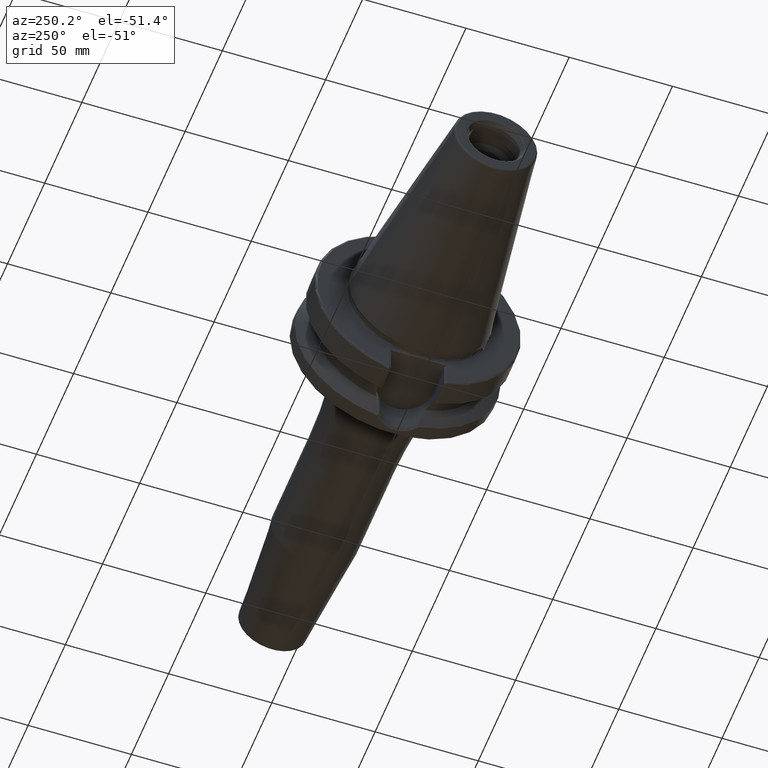
[diagram: clean part render]
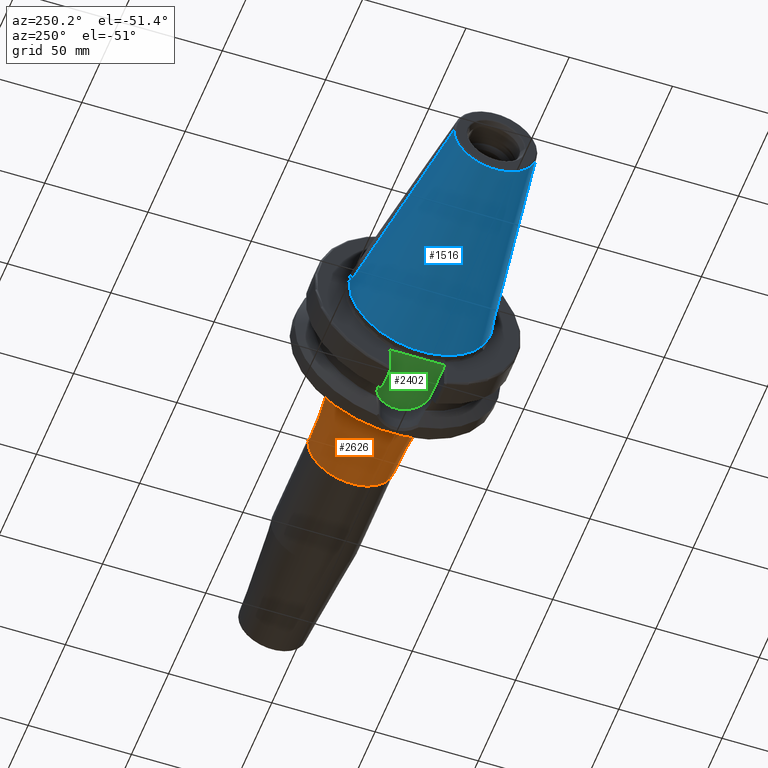
[diagram: same view with three faces highlighted in distinct colors, each labeled with its STEP entity id]
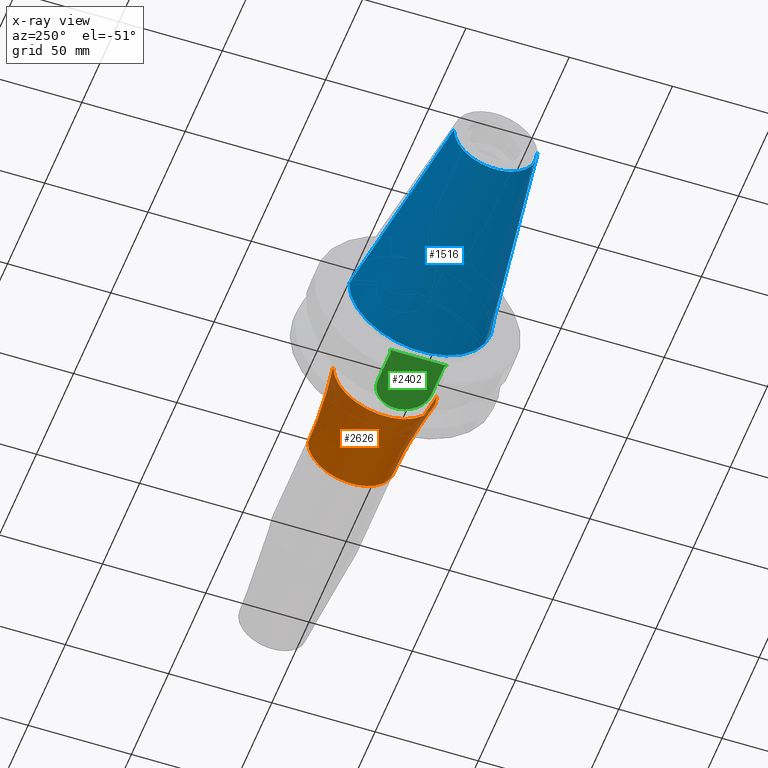
[diagram: x-ray of the same camera — body ghosted, the three highlighted faces saturated]
A machine part, auxiliary view with three faces highlighted in distinct colors.
The next image is the same camera in x-ray (body ghosted, the three faces saturated) — at least one of them is partly hidden behind the body in this view.
Their STEP definitions:

[orange] entity #2626 — the highlighted toroidal blend (fillet) surface has major radius 271 mm and minor (blend) radius 250 mm.
#859=CARTESIAN_POINT('',(4.783193277311E1,0.E0,0.E0));
#860=DIRECTION('',(1.E0,0.E0,0.E0));
#861=DIRECTION('',(0.E0,-1.E0,0.E0));
#862=AXIS2_PLACEMENT_3D('',#859,#860,#861);
#864=CARTESIAN_POINT('',(9.3E1,-2.71E2,-6.637585651379E-14));
#865=DIRECTION('',(0.E0,0.E0,1.E0));
#866=DIRECTION('',(0.E0,1.E0,0.E0));
#867=AXIS2_PLACEMENT_3D('',#864,#865,#866);
#869=CARTESIAN_POINT('',(9.3E1,2.71E2,3.318792825689E-14));
#870=DIRECTION('',(0.E0,0.E0,-1.E0));
#871=DIRECTION('',(0.E0,-1.E0,0.E0));
#872=AXIS2_PLACEMENT_3D('',#869,#870,#871);
#874=CARTESIAN_POINT('',(9.3E1,0.E0,0.E0));
#875=DIRECTION('',(1.E0,0.E0,0.E0));
#876=DIRECTION('',(0.E0,-1.E0,0.E0));
#877=AXIS2_PLACEMENT_3D('',#874,#875,#876);
#1435=CARTESIAN_POINT('',(4.783193277311E1,-2.511416123943E1,0.E0));
#1436=CARTESIAN_POINT('',(4.783193277311E1,2.511416123943E1,0.E0));
#1437=VERTEX_POINT('',#1435);
#1438=VERTEX_POINT('',#1436);
#1439=CARTESIAN_POINT('',(9.3E1,2.1E1,0.E0));
#1440=VERTEX_POINT('',#1439);
#1441=CARTESIAN_POINT('',(9.3E1,-2.1E1,0.E0));
#1442=VERTEX_POINT('',#1441);
#2614=CARTESIAN_POINT('',(9.3E1,0.E0,0.E0));
#2615=DIRECTION('',(1.E0,0.E0,0.E0));
#2616=DIRECTION('',(0.E0,-1.E0,0.E0));
#2617=AXIS2_PLACEMENT_3D('',#2614,#2615,#2616);
#2618=TOROIDAL_SURFACE('',#2617,2.71E2,2.5E2);
#2619=ORIENTED_EDGE('',*,*,#2579,.F.);
#2620=ORIENTED_EDGE('',*,*,#2609,.F.);
#2622=ORIENTED_EDGE('',*,*,#2621,.T.);
#2623=ORIENTED_EDGE('',*,*,#2605,.T.);
#2624=EDGE_LOOP('',(#2619,#2620,#2622,#2623));
#2625=FACE_OUTER_BOUND('',#2624,.F.);
#2626=ADVANCED_FACE('',(#2625),#2618,.F.);
#863=CIRCLE('',#862,2.511416123943E1);
#868=CIRCLE('',#867,2.5E2);
#873=CIRCLE('',#872,2.5E2);
#878=CIRCLE('',#877,2.1E1);
#2579=EDGE_CURVE('',#1437,#1438,#863,.T.);
#2605=EDGE_CURVE('',#1440,#1438,#873,.T.);
#2609=EDGE_CURVE('',#1442,#1437,#868,.T.);
#2621=EDGE_CURVE('',#1442,#1440,#878,.T.);

[blue] entity #1516 — the highlighted conical surface has half-angle 8.298 deg.
#32=CARTESIAN_POINT('',(-1.009443186692E2,0.E0,0.E0));
#33=DIRECTION('',(-1.E0,0.E0,0.E0));
#34=DIRECTION('',(0.E0,1.E0,0.E0));
#35=AXIS2_PLACEMENT_3D('',#32,#33,#34);
#47=DIRECTION('',(-9.895312636440E-1,-1.443186691705E-1,0.E0));
#48=VECTOR('',#47,1.013865167670E2);
#49=CARTESIAN_POINT('',(-6.191906162849E-1,3.483469384295E1,0.E0));
#50=LINE('',#49,#48);
#51=DIRECTION('',(-9.895312636440E-1,1.443186691705E-1,0.E0));
#52=VECTOR('',#51,1.013865167670E2);
#53=CARTESIAN_POINT('',(-6.191906162849E-1,-3.483469384295E1,0.E0));
#54=LINE('',#53,#52);
#55=CARTESIAN_POINT('',(-6.191906162850E-1,0.E0,0.E0));
#56=DIRECTION('',(-1.E0,0.E0,0.E0));
#57=DIRECTION('',(0.E0,1.E0,0.E0));
#58=AXIS2_PLACEMENT_3D('',#55,#56,#57);
#1188=CARTESIAN_POINT('',(-1.009443186692E2,2.020272667130E1,0.E0));
#1190=VERTEX_POINT('',#1188);
#1192=CARTESIAN_POINT('',(-1.009443186692E2,-2.020272667130E1,0.E0));
#1194=VERTEX_POINT('',#1192);
#1407=CARTESIAN_POINT('',(-6.191906162849E-1,3.483469384295E1,0.E0));
#1408=VERTEX_POINT('',#1407);
#1409=CARTESIAN_POINT('',(-6.191906162849E-1,-3.483469384295E1,0.E0));
#1410=VERTEX_POINT('',#1409);
#1504=CARTESIAN_POINT('',(-5.078175464273E1,0.E0,0.E0));
#1505=DIRECTION('',(1.E0,0.E0,0.E0));
#1506=DIRECTION('',(0.E0,-1.E0,0.E0));
#1507=AXIS2_PLACEMENT_3D('',#1504,#1505,#1506);
#1508=CONICAL_SURFACE('',#1507,2.751871025712E1,8.297826828206E0);
#1509=ORIENTED_EDGE('',*,*,#1494,.T.);
#1510=ORIENTED_EDGE('',*,*,#1471,.T.);
#1511=ORIENTED_EDGE('',*,*,#1498,.F.);
#1513=ORIENTED_EDGE('',*,*,#1512,.F.);
#1514=EDGE_LOOP('',(#1509,#1510,#1511,#1513));
#1515=FACE_OUTER_BOUND('',#1514,.F.);
#1516=ADVANCED_FACE('',(#1515),#1508,.T.);
#36=CIRCLE('',#35,2.020272667130E1);
#59=CIRCLE('',#58,3.483469384295E1);
#1471=EDGE_CURVE('',#1190,#1194,#36,.T.);
#1494=EDGE_CURVE('',#1408,#1190,#50,.T.);
#1498=EDGE_CURVE('',#1410,#1194,#54,.T.);
#1512=EDGE_CURVE('',#1408,#1410,#59,.T.);

[green] entity #2402 — the highlighted planar face has unit normal (0, 0, 1).
#116=CARTESIAN_POINT('',(3.E0,5.151759408202E0,-3.52E1));
#117=CARTESIAN_POINT('',(3.E0,4.661054534870E0,-3.52E1));
#118=CARTESIAN_POINT('',(2.985185415827E0,3.679726334622E0,-3.52E1));
#119=CARTESIAN_POINT('',(2.950323079572E0,2.207949548567E0,-3.52E1));
#120=CARTESIAN_POINT('',(2.926055980585E0,7.360772187789E-1,-3.52E1));
#121=CARTESIAN_POINT('',(2.926055295134E0,-7.360096390892E-1,-3.52E1));
#122=CARTESIAN_POINT('',(2.950321957577E0,-2.207902449886E0,-3.52E1));
#123=CARTESIAN_POINT('',(2.985185074233E0,-3.679708044781E0,-3.52E1));
#124=CARTESIAN_POINT('',(3.E0,-4.661048861242E0,-3.52E1));
#125=CARTESIAN_POINT('',(3.E0,-5.151759408202E0,-3.52E1));
#147=DIRECTION('',(7.071067811865E-1,-7.071067811865E-1,0.E0));
#148=VECTOR('',#147,1.414213562373E0);
#149=CARTESIAN_POINT('',(3.E0,1.39025E1,-3.52E1));
#150=LINE('',#149,#148);
#733=DIRECTION('',(-7.071067811865E-1,-7.071067811865E-1,0.E0));
#734=VECTOR('',#733,1.414213562373E0);
#735=CARTESIAN_POINT('',(4.E0,-1.29025E1,-3.52E1));
#736=LINE('',#735,#734);
#737=DIRECTION('',(-1.E0,0.E0,0.E0));
#738=VECTOR('',#737,1.73475E1);
#739=CARTESIAN_POINT('',(2.13475E1,1.29025E1,-3.52E1));
#740=LINE('',#739,#738);
#741=DIRECTION('',(0.E0,-1.E0,0.E0));
#742=VECTOR('',#741,8.750740591798E0);
#743=CARTESIAN_POINT('',(3.E0,1.39025E1,-3.52E1));
#744=LINE('',#743,#742);
#745=DIRECTION('',(0.E0,-1.E0,0.E0));
#746=VECTOR('',#745,8.750740591798E0);
#747=CARTESIAN_POINT('',(3.E0,-5.151759408202E0,-3.52E1));
#748=LINE('',#747,#746);
#749=DIRECTION('',(1.E0,0.E0,0.E0));
#750=VECTOR('',#749,1.73475E1);
#751=CARTESIAN_POINT('',(4.E0,-1.29025E1,-3.52E1));
#752=LINE('',#751,#750);
#753=CARTESIAN_POINT('',(2.13475E1,0.E0,-3.52E1));
#754=DIRECTION('',(0.E0,0.E0,1.E0));
#755=DIRECTION('',(0.E0,-1.E0,0.E0));
#756=AXIS2_PLACEMENT_3D('',#753,#754,#755);
#1334=CARTESIAN_POINT('',(2.13475E1,-1.29025E1,-3.52E1));
#1335=CARTESIAN_POINT('',(2.13475E1,1.29025E1,-3.52E1));
#1336=VERTEX_POINT('',#1334);
#1337=VERTEX_POINT('',#1335);
#1338=CARTESIAN_POINT('',(3.E0,5.151759408202E0,-3.52E1));
#1339=VERTEX_POINT('',#1338);
#1340=CARTESIAN_POINT('',(3.E0,-5.151759408202E0,-3.52E1));
#1341=VERTEX_POINT('',#1340);
#1387=CARTESIAN_POINT('',(4.E0,1.29025E1,-3.52E1));
#1389=VERTEX_POINT('',#1387);
#1391=CARTESIAN_POINT('',(3.E0,1.39025E1,-3.52E1));
#1393=VERTEX_POINT('',#1391);
#1397=CARTESIAN_POINT('',(3.E0,-1.39025E1,-3.52E1));
#1398=VERTEX_POINT('',#1397);
#1399=CARTESIAN_POINT('',(4.E0,-1.29025E1,-3.52E1));
#1401=VERTEX_POINT('',#1399);
#2387=CARTESIAN_POINT('',(0.E0,0.E0,-3.52E1));
#2388=DIRECTION('',(0.E0,0.E0,1.E0));
#2389=DIRECTION('',(1.E0,0.E0,0.E0));
#2390=AXIS2_PLACEMENT_3D('',#2387,#2388,#2389);
#2391=PLANE('',#2390);
#2392=ORIENTED_EDGE('',*,*,#1663,.T.);
#2393=ORIENTED_EDGE('',*,*,#1644,.F.);
#2394=ORIENTED_EDGE('',*,*,#1608,.T.);
#2395=ORIENTED_EDGE('',*,*,#1587,.T.);
#2396=ORIENTED_EDGE('',*,*,#1620,.T.);
#2397=ORIENTED_EDGE('',*,*,#2382,.F.);
#2398=ORIENTED_EDGE('',*,*,#1818,.T.);
#2399=ORIENTED_EDGE('',*,*,#1912,.T.);
#2400=EDGE_LOOP('',(#2392,#2393,#2394,#2395,#2396,#2397,#2398,#2399));
#2401=FACE_OUTER_BOUND('',#2400,.F.);
#2402=ADVANCED_FACE('',(#2401),#2391,.F.);
#126=B_SPLINE_CURVE_WITH_KNOTS('',3,(#116,#117,#118,#119,#120,#121,#122,#123,
#124,#125),.UNSPECIFIED.,.F.,.F.,(4,1,1,1,1,1,1,4),(0.E0,1.428571428571E-1,
2.857142857143E-1,4.285714285714E-1,5.714285714286E-1,7.142857142857E-1,
8.571428571429E-1,1.E0),.UNSPECIFIED.);
#757=CIRCLE('',#756,1.29025E1);
#1587=EDGE_CURVE('',#1339,#1341,#126,.T.);
#1608=EDGE_CURVE('',#1393,#1339,#744,.T.);
#1620=EDGE_CURVE('',#1341,#1398,#748,.T.);
#1644=EDGE_CURVE('',#1393,#1389,#150,.T.);
#1663=EDGE_CURVE('',#1337,#1389,#740,.T.);
#1818=EDGE_CURVE('',#1401,#1336,#752,.T.);
#1912=EDGE_CURVE('',#1336,#1337,#757,.T.);
#2382=EDGE_CURVE('',#1401,#1398,#736,.T.);